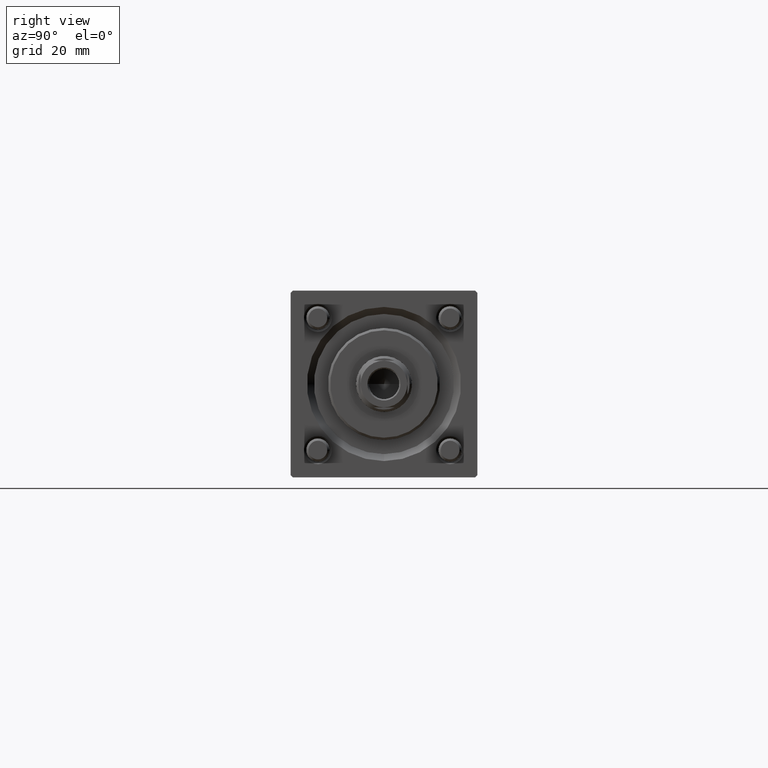
[diagram: clean part render]
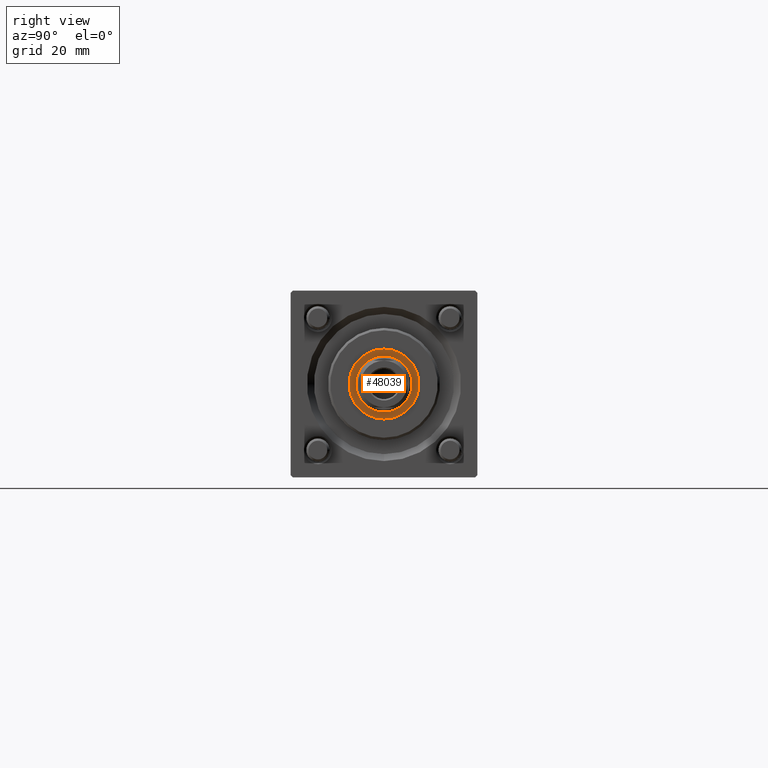
[diagram: same view with one face highlighted and labeled with its STEP entity id]
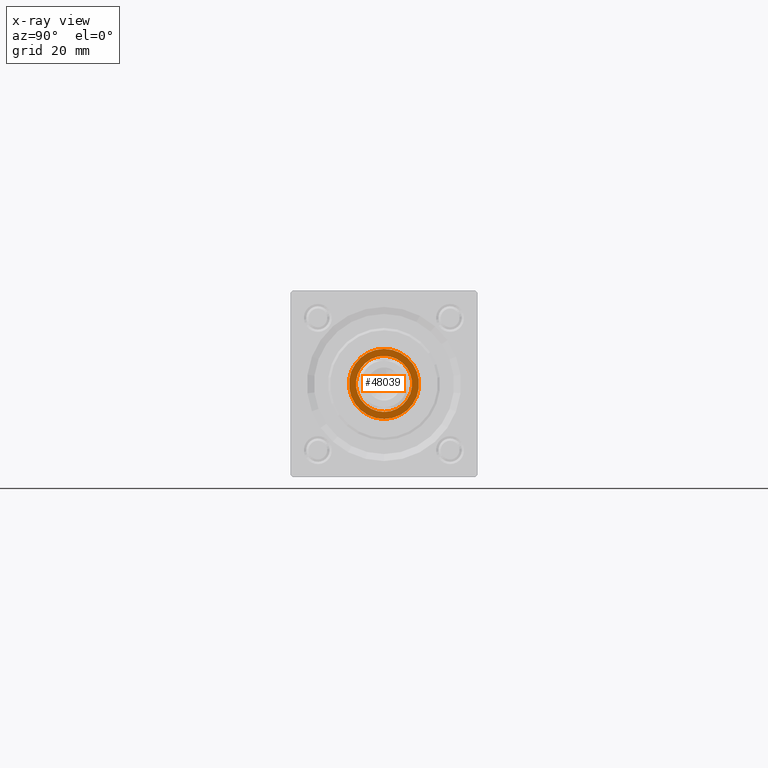
[diagram: x-ray of the same camera — body ghosted, the highlighted face saturated]
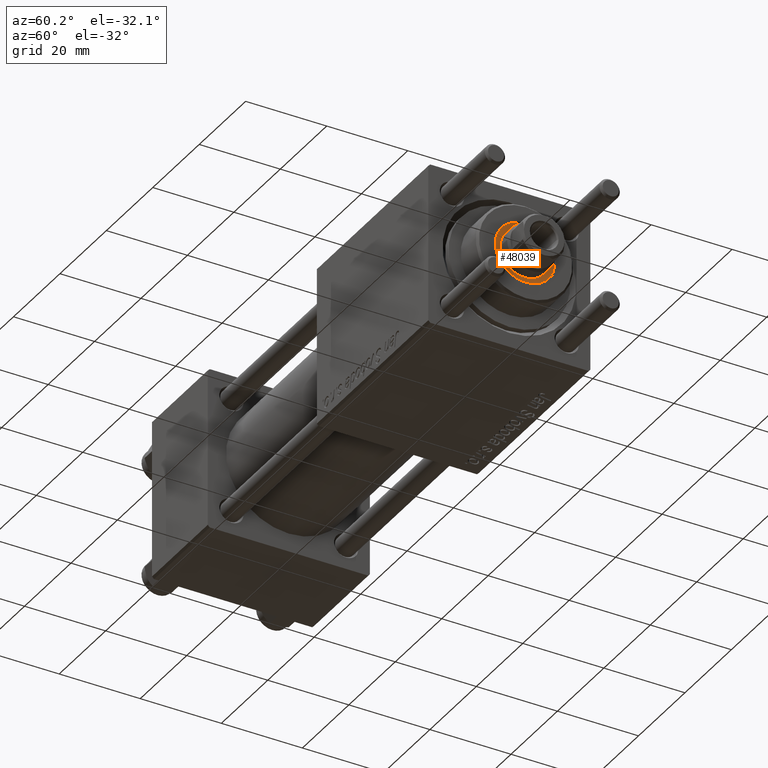
[diagram: same view with one face highlighted and labeled with its STEP entity id]
A machine part, right view. The second image highlights one B-rep face of the part: STEP entity #48039.
The next image is the same camera in x-ray: the body ghosted, the highlighted face saturated — about 0% of this face is hidden behind the body in this view.
A second angle (auxiliary view) of the same face is appended — the face is thin or edge-on in the first view.
In plain terms, the highlighted planar face has unit normal (1, 0, 0).
Its self-contained STEP definition (entity closure, byte-faithful):
#524 = AXIS2_PLACEMENT_3D ( 'NONE', #5076, #13107, #1057 ) ;
#1057 = DIRECTION ( 'NONE',  ( 1.000000000000000000, 0.000000000000000000, 0.000000000000000000 ) ) ;
#2006 = DIRECTION ( 'NONE',  ( -0.000000000000000000, -0.000000000000000000, -1.000000000000000000 ) ) ;
#2572 = EDGE_CURVE ( 'NONE', #32295, #30447, #5519, .T. ) ;
#4017 = ORIENTED_EDGE ( 'NONE', *, *, #2572, .T. ) ;
#5049 = DIRECTION ( 'NONE',  ( -0.000000000000000000, -0.000000000000000000, -1.000000000000000000 ) ) ;
#5076 = CARTESIAN_POINT ( 'NONE',  ( 0.000000000000000000, 0.000000000000000000, 35.20000000000000284 ) ) ;
#5519 = CIRCLE ( 'NONE', #12833, 6.000000000000000888 ) ;
#5740 = CARTESIAN_POINT ( 'NONE',  ( 7.500000000000000888, 0.000000000000000000, 35.20000000000000284 ) ) ;
#10345 = CARTESIAN_POINT ( 'NONE',  ( 0.000000000000000000, 0.000000000000000000, 35.20000000000000284 ) ) ;
#11865 = CARTESIAN_POINT ( 'NONE',  ( 0.000000000000000000, 0.000000000000000000, 35.20000000000000284 ) ) ;
#12833 = AXIS2_PLACEMENT_3D ( 'NONE', #44347, #5049, #52952 ) ;
#13107 = DIRECTION ( 'NONE',  ( 0.000000000000000000, 0.000000000000000000, 1.000000000000000000 ) ) ;
#13671 = VERTEX_POINT ( 'NONE', #40454 ) ;
#15012 = AXIS2_PLACEMENT_3D ( 'NONE', #11865, #33084, #46011 ) ;
#21645 = AXIS2_PLACEMENT_3D ( 'NONE', #51425, #25324, #47127 ) ;
#22081 = ORIENTED_EDGE ( 'NONE', *, *, #44278, .T. ) ;
#23788 = CARTESIAN_POINT ( 'NONE',  ( 6.000000000000000888, 0.000000000000000000, 35.20000000000000284 ) ) ;
#25324 = DIRECTION ( 'NONE',  ( 0.000000000000000000, 0.000000000000000000, 1.000000000000000000 ) ) ;
#25814 = VERTEX_POINT ( 'NONE', #5740 ) ;
#26153 = CIRCLE ( 'NONE', #524, 7.500000000000000888 ) ;
#30447 = VERTEX_POINT ( 'NONE', #23788 ) ;
#32295 = VERTEX_POINT ( 'NONE', #51955 ) ;
#32440 = CIRCLE ( 'NONE', #39780, 6.000000000000000888 ) ;
#33084 = DIRECTION ( 'NONE',  ( 0.000000000000000000, 0.000000000000000000, 1.000000000000000000 ) ) ;
#33358 = PLANE ( 'NONE',  #15012 ) ;
#33641 = FACE_OUTER_BOUND ( 'NONE', #51293, .T. ) ;
#36707 = DIRECTION ( 'NONE',  ( 1.000000000000000000, 0.000000000000000000, 0.000000000000000000 ) ) ;
#37670 = FACE_BOUND ( 'NONE', #44656, .T. ) ;
#39780 = AXIS2_PLACEMENT_3D ( 'NONE', #10345, #2006, #36707 ) ;
#39942 = EDGE_CURVE ( 'NONE', #13671, #25814, #52814, .T. ) ;
#40454 = CARTESIAN_POINT ( 'NONE',  ( -7.500000000000000888, 9.184850993605149917E-16, 35.20000000000000284 ) ) ;
#44278 = EDGE_CURVE ( 'NONE', #30447, #32295, #32440, .T. ) ;
#44347 = CARTESIAN_POINT ( 'NONE',  ( 0.000000000000000000, 0.000000000000000000, 35.20000000000000284 ) ) ;
#44656 = EDGE_LOOP ( 'NONE', ( #22081, #4017 ) ) ;
#46011 = DIRECTION ( 'NONE',  ( 1.000000000000000000, 0.000000000000000000, -0.000000000000000000 ) ) ;
#47127 = DIRECTION ( 'NONE',  ( 1.000000000000000000, 0.000000000000000000, 0.000000000000000000 ) ) ;
#48039 = ADVANCED_FACE ( 'NONE', ( #33641, #37670 ), #33358, .T. ) ;
#50218 = ORIENTED_EDGE ( 'NONE', *, *, #53291, .T. ) ;
#51293 = EDGE_LOOP ( 'NONE', ( #50218, #55366 ) ) ;
#51425 = CARTESIAN_POINT ( 'NONE',  ( 0.000000000000000000, 0.000000000000000000, 35.20000000000000284 ) ) ;
#51955 = CARTESIAN_POINT ( 'NONE',  ( -6.000000000000000888, 7.347880794884119736E-16, 35.20000000000000284 ) ) ;
#52814 = CIRCLE ( 'NONE', #21645, 7.500000000000000888 ) ;
#52952 = DIRECTION ( 'NONE',  ( 1.000000000000000000, 0.000000000000000000, 0.000000000000000000 ) ) ;
#53291 = EDGE_CURVE ( 'NONE', #25814, #13671, #26153, .T. ) ;
#55366 = ORIENTED_EDGE ( 'NONE', *, *, #39942, .T. ) ;